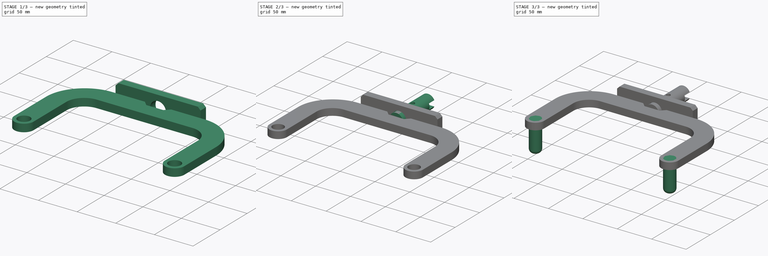
[diagram: build sequence overview — one tinted view per stage of 3, left to right]
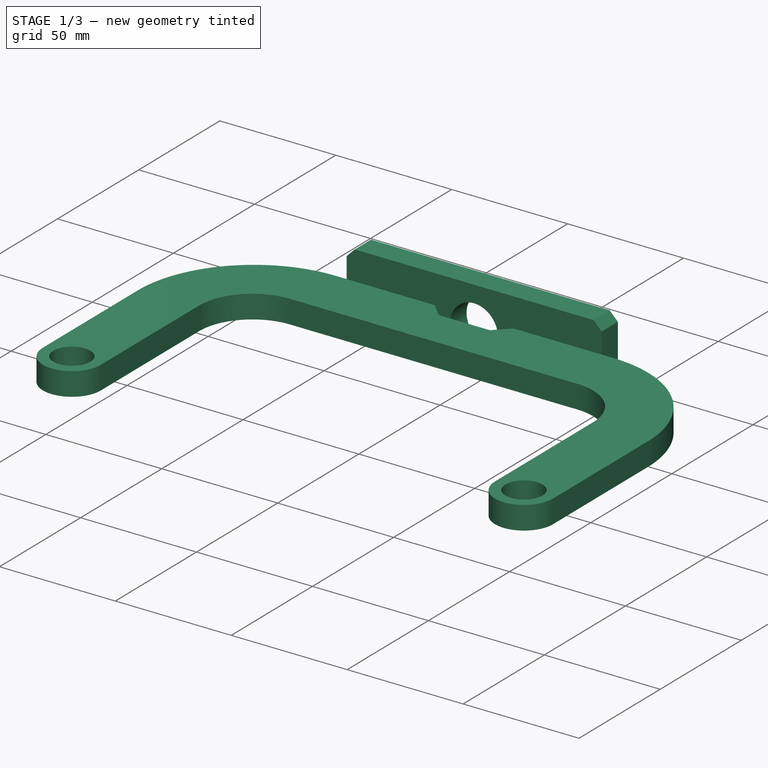
[diagram: stage 1 of 3 — iso view after this stage's code; geometry added in this stage tinted green]
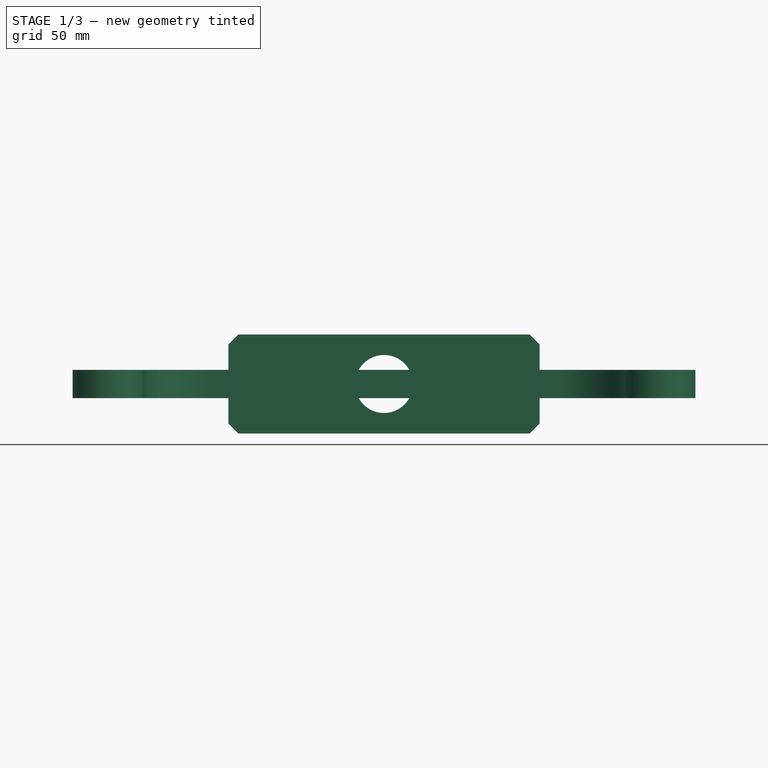
[diagram: stage 1 of 3 — front view after this stage's code; geometry added in this stage tinted green]
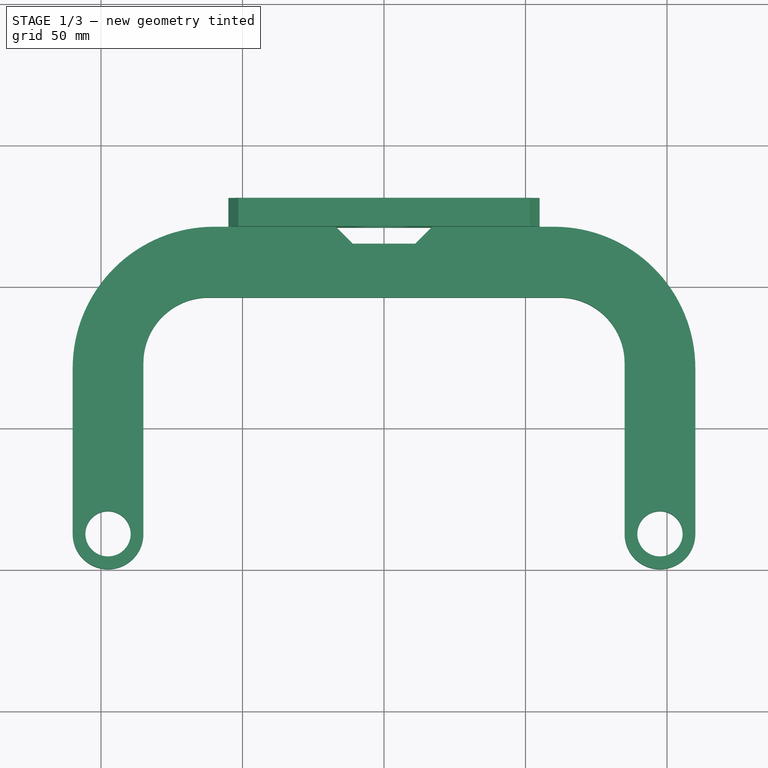
[diagram: stage 1 of 3 — top view after this stage's code; geometry added in this stage tinted green]
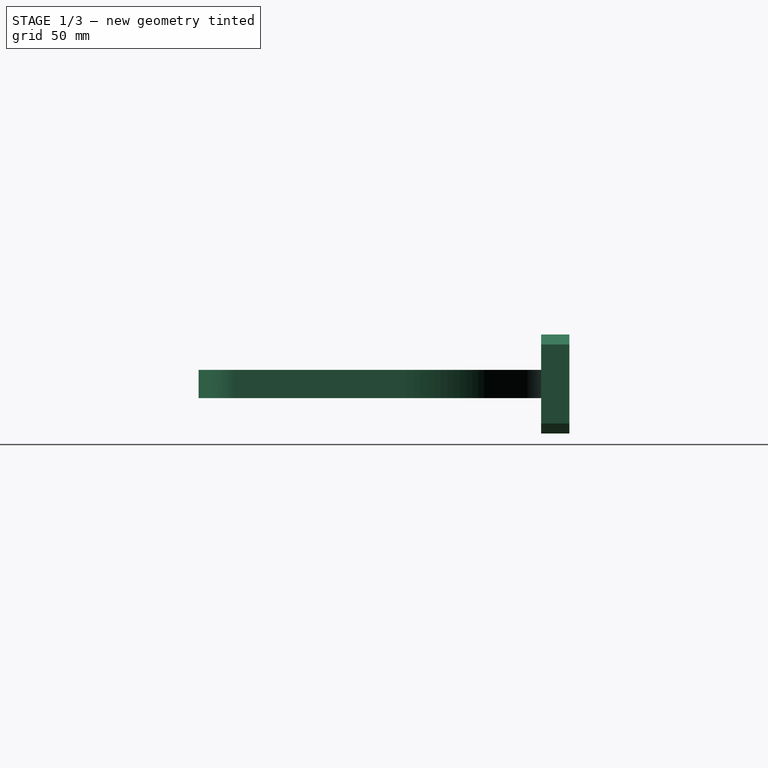
[diagram: stage 1 of 3 — right view after this stage's code; geometry added in this stage tinted green]
FCSTD DOCUMENT  (FreeCAD 0.17R10990 (Git))
Label: Clutch B
License: All rights reserved
LicenseURL: http://en.wikipedia.org/wiki/All_rights_reserved
objects: Sketcher::SketchObject×6, PartDesign::Pad×4, PartDesign::Pocket×2, PartDesign::Fillet×1, PartDesign::Body×1
note: 20 computed .brp shape members not serialized (recipe doc carries the construction recipe); baked Part::Feature solids carry a one-line shape summary decoded from their .brp

FEATURE [Sketcher::SketchObject] Sketch
  MapMode = 5
  Support = -> [XY_Plane]
  sketch-geometry (18):
    g0: ArcOfCircle CenterX=-97.5 CenterY=12.5 CenterZ=0 NormalX=0 NormalY=0 NormalZ=1 Radius=12.5 StartAngle=3.14159 EndAngle=6.28319
    g1: ArcOfCircle CenterX=97.5 CenterY=12.5 CenterZ=0 NormalX=0 NormalY=0 NormalZ=1 Radius=12.5 StartAngle=3.14159 EndAngle=6.28319
    g2: LineSegment StartX=-110 StartY=12.5 StartZ=0 EndX=-110 EndY=71 EndZ=0
    g3: LineSegment StartX=-60 StartY=121 StartZ=0 EndX=-17 EndY=121 EndZ=0
    g4: LineSegment StartX=110 StartY=71 StartZ=0 EndX=110 EndY=12.5 EndZ=0
    g5: LineSegment StartX=-85 StartY=12.5 StartZ=0 EndX=-85 EndY=73 EndZ=0
    g6: LineSegment StartX=-62 StartY=96 StartZ=0 EndX=62 EndY=96 EndZ=0
    g7: LineSegment StartX=85 StartY=73 StartZ=0 EndX=85 EndY=12.5 EndZ=0
    g8: ArcOfCircle CenterX=-62 CenterY=73 CenterZ=0 NormalX=0 NormalY=0 NormalZ=1 Radius=23 StartAngle=1.5708 EndAngle=3.14159
    g9: ArcOfCircle CenterX=62 CenterY=73 CenterZ=0 NormalX=0 NormalY=0 NormalZ=1 Radius=23 StartAngle=0 EndAngle=1.5708
    g10: ArcOfCircle CenterX=60 CenterY=71 CenterZ=0 NormalX=0 NormalY=0 NormalZ=1 Radius=50 StartAngle=0 EndAngle=1.5708
    g11: ArcOfCircle CenterX=-60 CenterY=71 CenterZ=0 NormalX=0 NormalY=0 NormalZ=1 Radius=50 StartAngle=1.5708 EndAngle=3.14159
    g12: LineSegment StartX=17 StartY=121 StartZ=0 EndX=11 EndY=115 EndZ=0
    g13: LineSegment StartX=11 StartY=115 StartZ=0 EndX=-11 EndY=115 EndZ=0
    g14: LineSegment StartX=-11 StartY=115 StartZ=0 EndX=-17 EndY=121 EndZ=0
    g15: LineSegment StartX=17 StartY=121 StartZ=0 EndX=60 EndY=121 EndZ=0
    g16: Circle CenterX=-97.5 CenterY=12.5 CenterZ=0 NormalX=0 NormalY=0 NormalZ=1 Radius=8
    g17: Circle CenterX=97.5 CenterY=12.5 CenterZ=0 NormalX=0 NormalY=0 NormalZ=1 Radius=8
  constraints (49):
    c: Vertical(g2)
    c: Horizontal(g3)
    c: Vertical(g4)
    c: Vertical(g5)
    c: Horizontal(g6)
    c: Vertical(g7)
    c: Coincident(g1,g4)
    c: Coincident(g7,g1)
    c: Coincident(g0,g5)
    c: Coincident(g0,g2)
    c: Equal(g0,g1)
    c: Tangent(g-1,g1)
    c: Tangent(g0,g-1)
    c: Tangent(g6,g8) = 1.5708
    c: Tangent(g5,g8) = 1.5708
    c: Tangent(g7,g9) = 1.5708
    c: Tangent(g6,g9) = 1.5708
    c: Tangent(g15,g10) = 1.5708
    c: Tangent(g4,g10) = 1.5708
    c: Tangent(g2,g11) = 1.5708
    c: Tangent(g3,g11) = 1.5708
    c: Equal(g10,g11)
    c: Equal(g9,g8)
    c: Radius(g1) = 12.5
    c: Radius(g10) = 50
    c: Radius(g9) = 23
    c: Tangent(g1,g7)
    c: Tangent(g1,g4)
    c: Tangent(g0,g5)
    c: Tangent(g0,g2)
    c: DistanceX(g0,g1) = 170
    c: DistanceY(g-1,g6) = 96
    c: DistanceY(g-1,g3) = 121
    c: Symmetric(g2,g4,g-2)
    c: Coincident(g12,g13)
    c: Horizontal(g13)
    c: Coincident(g13,g14)
    c: Symmetric(g13,g12,g-2)
    c: Equal(g14,g12)
    c: Coincident(g3,g14)
    c: Coincident(g15,g12)
    c: Tangent(g3,g15)
    c: DistanceX(g3,g12) = 34
    c: DistanceX(g13,g13) = 22
    c: DistanceY(g12,g12) = 6
    c: Coincident(g17,g1)
    c: Equal(g16,g17)
    c: Radius(g17) = 8
    c: Coincident(g16,g0)
FEATURE [PartDesign::Pad] Pad
  Length = 10
  Length2 = 100
  Midplane = true
  Profile = -> Sketch
  Type = 0
FEATURE [Sketcher::SketchObject] Sketch001
  MapMode = 5
  Placement = pos=(2.9e-11,121,0) rot=(0,0.707107,0.707107;3.14159rad)
  Support = -> [Pad]
  sketch-geometry (9):
    g0: LineSegment StartX=-51.4645 StartY=17.5 StartZ=0 EndX=51.4645 EndY=17.5 EndZ=0
    g1: LineSegment StartX=51.4645 StartY=17.5 StartZ=0 EndX=55 EndY=13.9645 EndZ=0
    g2: LineSegment StartX=55 StartY=13.9645 StartZ=0 EndX=55 EndY=-13.9645 EndZ=0
    g3: LineSegment StartX=55 StartY=-13.9645 StartZ=0 EndX=51.4645 EndY=-17.5 EndZ=0
    g4: LineSegment StartX=51.4645 StartY=-17.5 StartZ=0 EndX=-51.4645 EndY=-17.5 EndZ=0
    g5: LineSegment StartX=-51.4645 StartY=-17.5 StartZ=0 EndX=-55 EndY=-13.9645 EndZ=0
    g6: LineSegment StartX=-55 StartY=-13.9645 StartZ=0 EndX=-55 EndY=13.9645 EndZ=0
    g7: LineSegment StartX=-55 StartY=13.9645 StartZ=0 EndX=-51.4645 EndY=17.5 EndZ=0
    g8: Circle CenterX=0 CenterY=0 CenterZ=0 NormalX=0 NormalY=0 NormalZ=1 Radius=10.25
  constraints (26):
    c: Horizontal(g0)
    c: Coincident(g0,g1)
    c: Coincident(g1,g2)
    c: Vertical(g2)
    c: Coincident(g2,g3)
    c: Coincident(g3,g4)
    c: Horizontal(g4)
    c: Coincident(g4,g5)
    c: Coincident(g5,g6)
    c: Vertical(g6)
    c: Coincident(g6,g7)
    c: Coincident(g7,g0)
    c: Equal(g7,g5)
    c: Equal(g5,g3)
    c: Equal(g3,g1)
    c: Parallel(g7,g3)
    c: Parallel(g5,g1)
    c: Angle(g-1,g7) = 0.785398
    c: Angle(g1,g-1) = 0.785398
    c: Symmetric(g3,g0,g-1)
    c: Symmetric(g2,g5,g-2)
    c: Coincident(g8,g-1)
    c: Radius(g8) = 10.25
    c: Distance(g5) = 5
    c: DistanceX(g6,g1) = 110
    c: DistanceY(g3,g0) = 35
FEATURE [PartDesign::Pad] Pad001
  BaseFeature = -> Pad
  Length = 10
  Length2 = 100
  Profile = -> Sketch001
  Type = 0
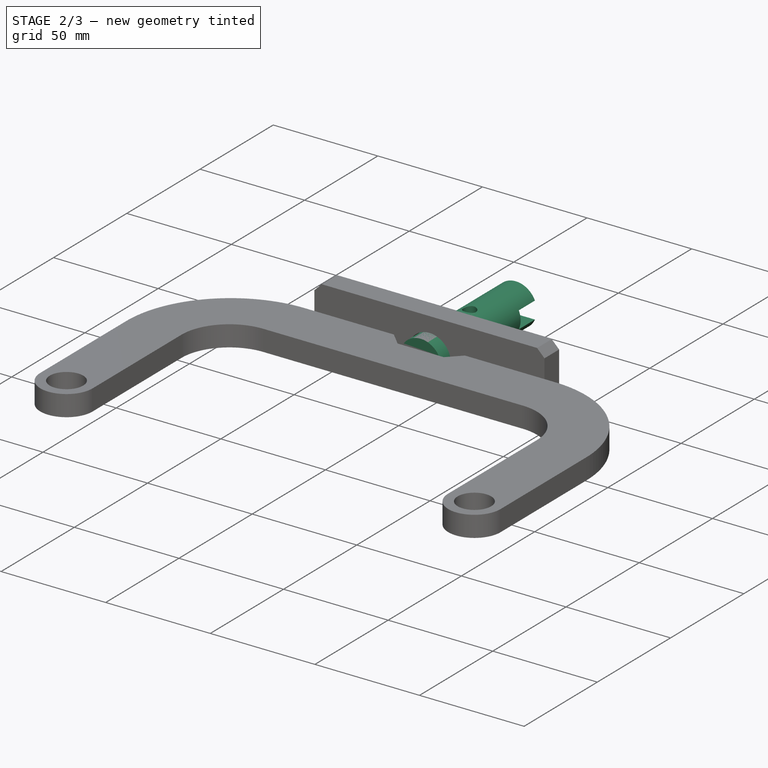
[diagram: stage 2 of 3 — iso view after this stage's code; geometry added in this stage tinted green]
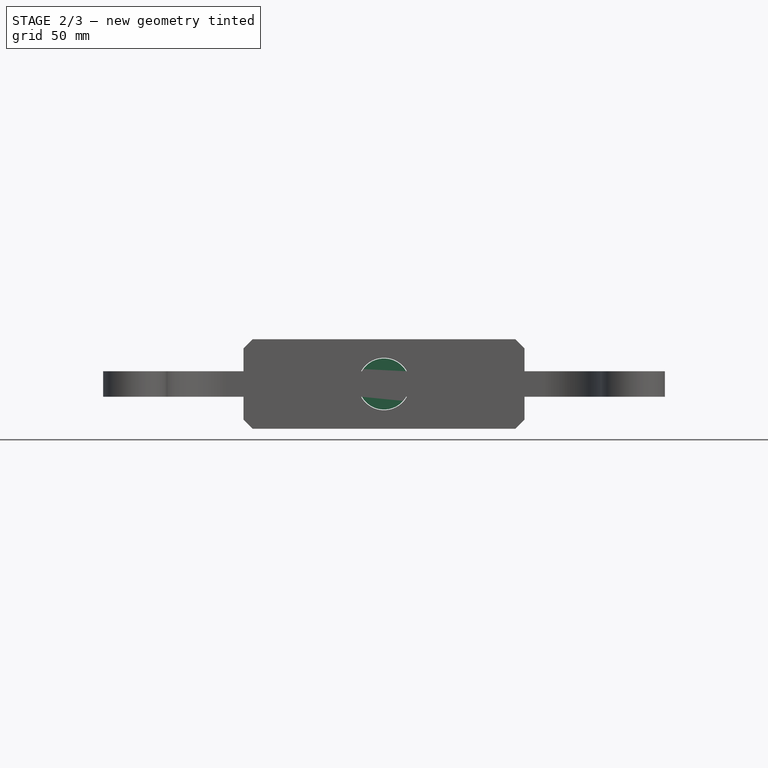
[diagram: stage 2 of 3 — front view after this stage's code; geometry added in this stage tinted green]
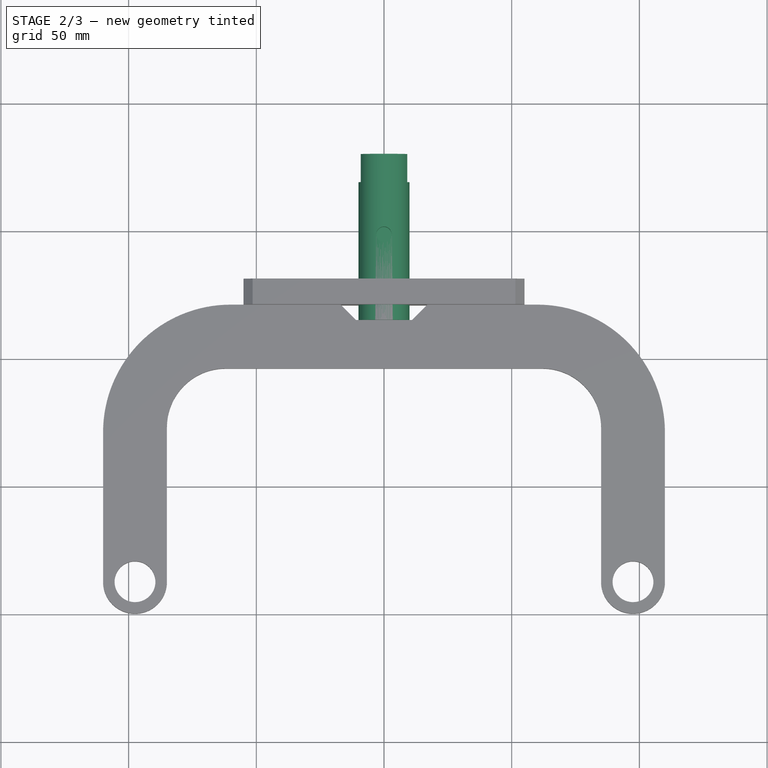
[diagram: stage 2 of 3 — top view after this stage's code; geometry added in this stage tinted green]
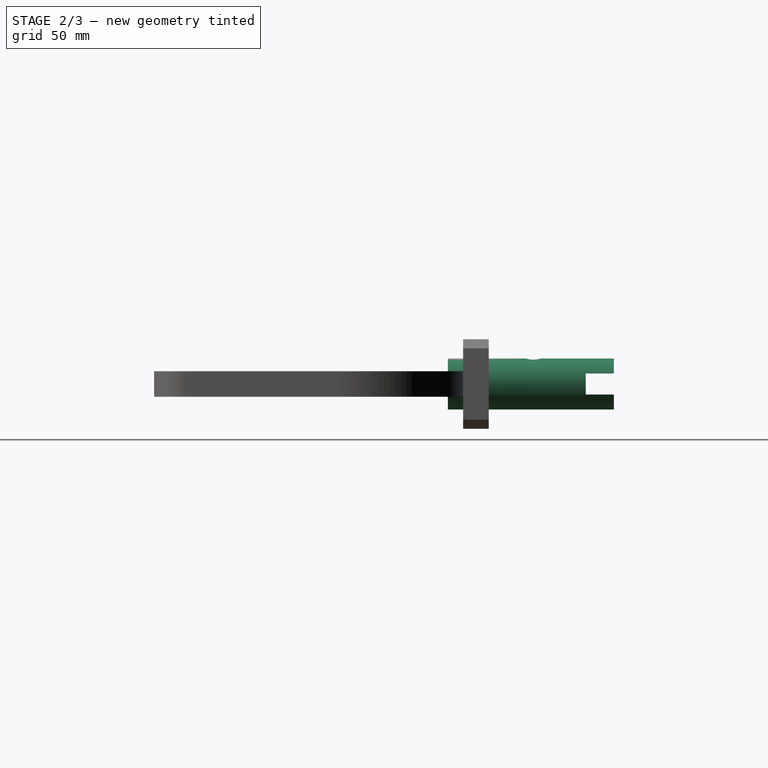
[diagram: stage 2 of 3 — right view after this stage's code; geometry added in this stage tinted green]
FEATURE [Sketcher::SketchObject] Sketch002
  MapMode = 5
  Placement = pos=(0,115,0) rot=(0,0.707107,0.707107;3.14159rad)
  Support = -> [Pad001]
  sketch-geometry (1):
    g0: Circle CenterX=0 CenterY=0 CenterZ=0 NormalX=0 NormalY=0 NormalZ=1 Radius=10
  constraints (2):
    c: Coincident(g0,g-1)
    c: Radius(g0) = 10
FEATURE [PartDesign::Pad] Pad002
  BaseFeature = -> Pad001
  Length = 65
  Length2 = 100
  Profile = -> Sketch002
  Type = 0
FEATURE [Sketcher::SketchObject] Sketch003
  ExternalGeometry = -> [Pad002]
  MapMode = 5
  Placement = pos=(0,180,0) rot=(0,0.707107,0.707107;3.14159rad)
  Support = -> [Pad002]
  sketch-geometry (4):
    g0: LineSegment StartX=-10 StartY=4.1 StartZ=0 EndX=10 EndY=4.1 EndZ=0
    g1: LineSegment StartX=10 StartY=4.1 StartZ=0 EndX=10 EndY=-4.1 EndZ=0
    g2: LineSegment StartX=10 StartY=-4.1 StartZ=0 EndX=-10 EndY=-4.1 EndZ=0
    g3: LineSegment StartX=-10 StartY=-4.1 StartZ=0 EndX=-10 EndY=4.1 EndZ=0
  constraints (12):
    c: Coincident(g0,g1)
    c: Coincident(g1,g2)
    c: Coincident(g2,g3)
    c: Coincident(g3,g0)
    c: Horizontal(g0)
    c: Horizontal(g2)
    c: Vertical(g1)
    c: Vertical(g3)
    c: Symmetric(g0,g0,g-2)
    c: Symmetric(g1,g0,g-1)
    c: DistanceY(g1,g1) = 8.2
    c: Tangent(g-3,g3)
FEATURE [PartDesign::Pocket] Pocket
  BaseFeature = -> Pad002
  Length = 11
  Profile = -> Sketch003
  Type = 0
FEATURE [Sketcher::SketchObject] Sketch004
  ExternalGeometry = -> [Pocket]
  MapMode = 5
  Support = -> [XY_Plane]
  sketch-geometry (1):
    g0: Circle CenterX=0 CenterY=148.5 CenterZ=0 NormalX=0 NormalY=0 NormalZ=1 Radius=3
  constraints (3):
    c: Radius(g0) = 3
    c: PointOnObject(g0,g-2)
    c: DistanceY(g-3,g0) = 33.5
FEATURE [PartDesign::Pocket] Pocket001
  BaseFeature = -> Pocket
  Length = 5
  Profile = -> Sketch004
  Reversed = true
  Type = 1
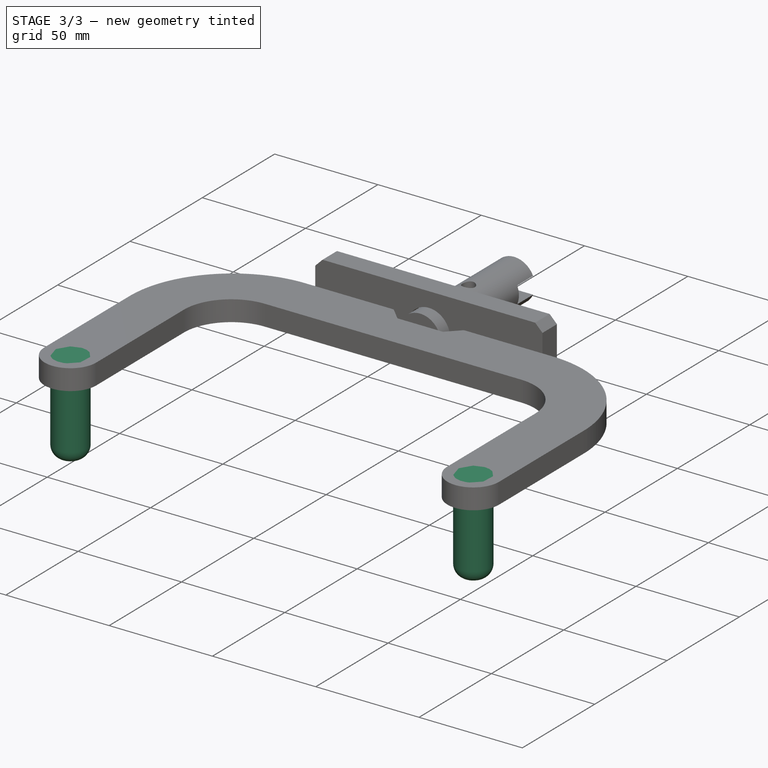
[diagram: stage 3 of 3 — iso view after this stage's code; geometry added in this stage tinted green]
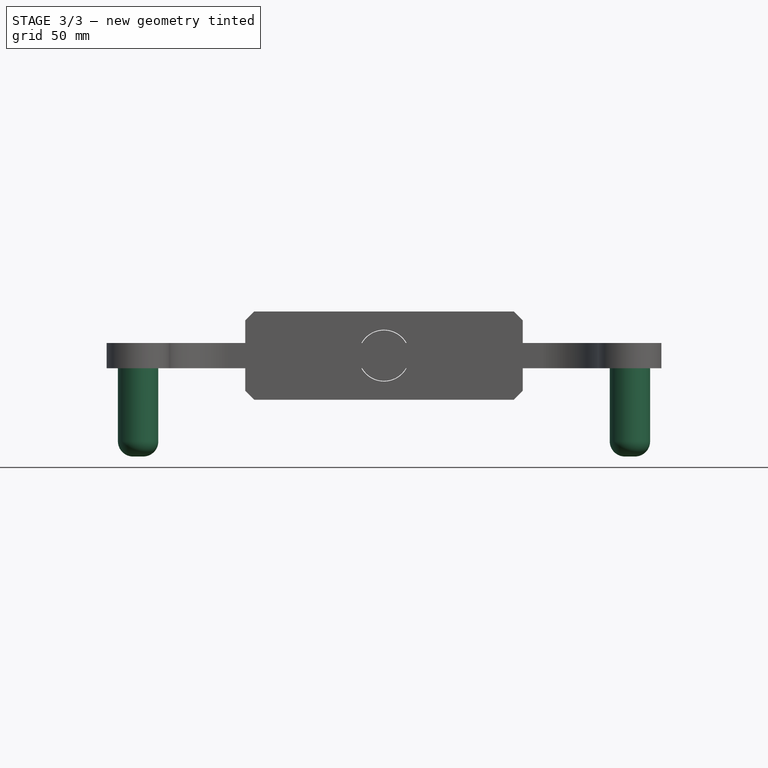
[diagram: stage 3 of 3 — front view after this stage's code; geometry added in this stage tinted green]
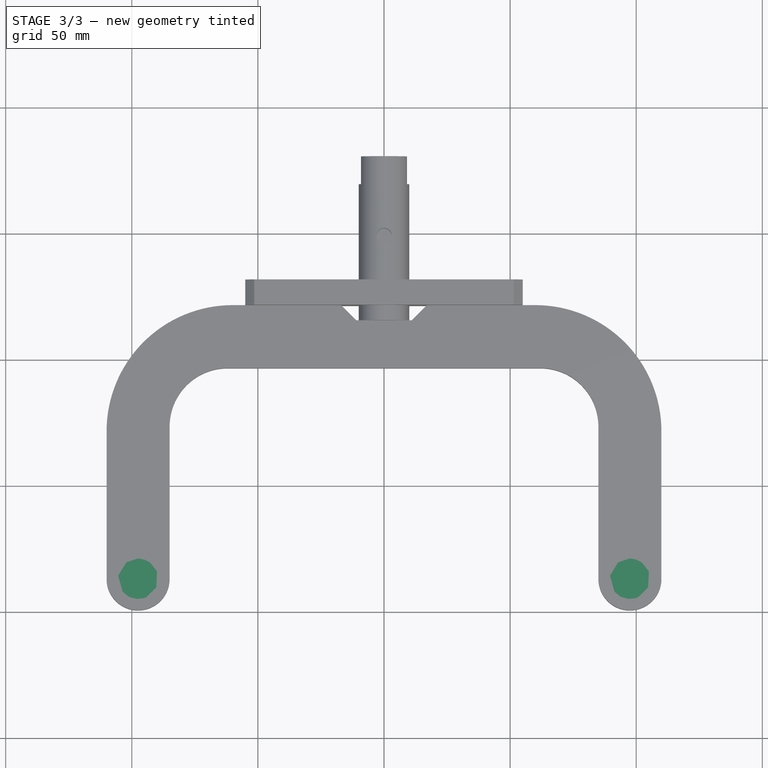
[diagram: stage 3 of 3 — top view after this stage's code; geometry added in this stage tinted green]
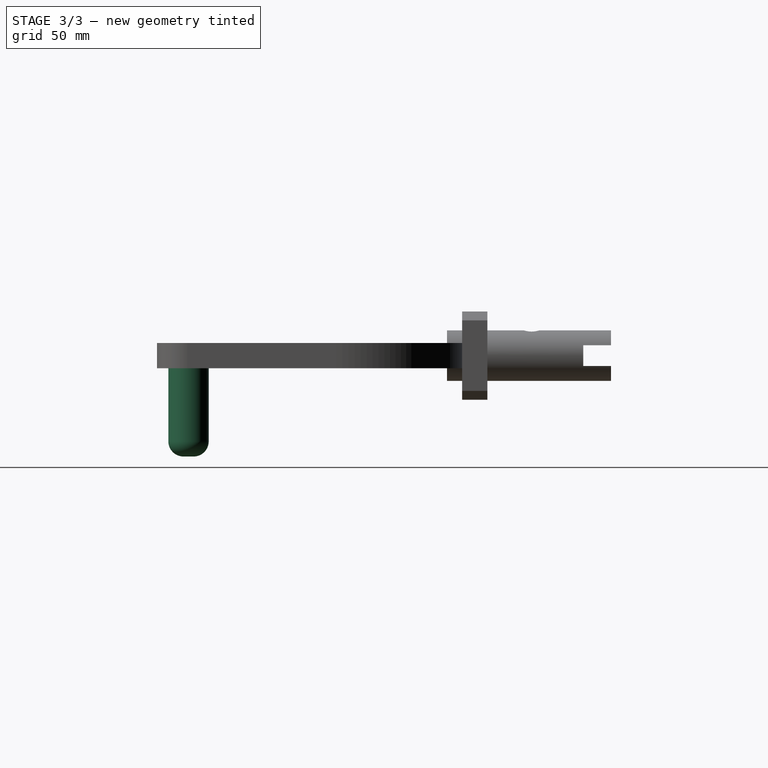
[diagram: stage 3 of 3 — right view after this stage's code; geometry added in this stage tinted green]
FEATURE [Sketcher::SketchObject] Sketch005
  ExternalGeometry = -> [Pocket001]
  MapMode = 5
  Placement = pos=(0,0,5) rot=(0,0,1;0rad)
  Support = -> [Pocket001]
  sketch-geometry (2):
    g0: Circle CenterX=-97.5 CenterY=12.5 CenterZ=0 NormalX=0 NormalY=0 NormalZ=1 Radius=8
    g1: Circle CenterX=97.5 CenterY=12.5 CenterZ=0 NormalX=0 NormalY=0 NormalZ=1 Radius=8
  constraints (2):
    c: Coincident(g0,g-3)
    c: Coincident(g1,g-4)
FEATURE [PartDesign::Pad] Pad003
  BaseFeature = -> Pocket001
  Length = 45
  Length2 = 100
  Profile = -> Sketch005
  Reversed = true
  Type = 0
FEATURE [PartDesign::Fillet] Fillet
  Base = -> Pad003 [Edge82,Edge84]
  BaseFeature = -> Pad003
  Radius = 6
FEATURE [PartDesign::Body] Body
  Group = -> [Sketch,Pad,Sketch001,Pad001,Sketch002,Pad002,Sketch003,Pocket,Sketch004,Pocket001,Sketch005,Pad003,Fillet]
  Origin = -> BodyOrigin
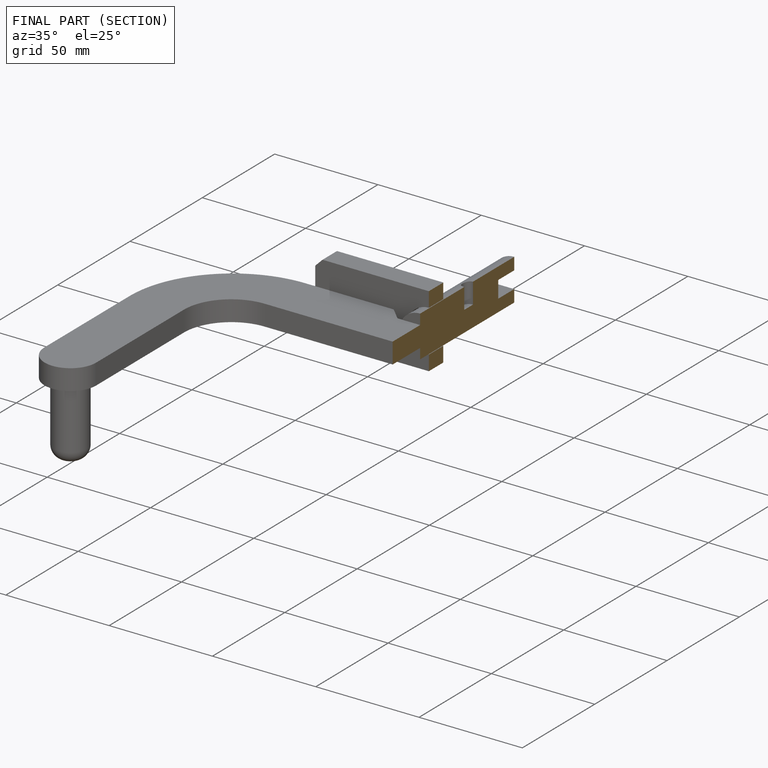
[diagram: finished part — half-section view (interior)]
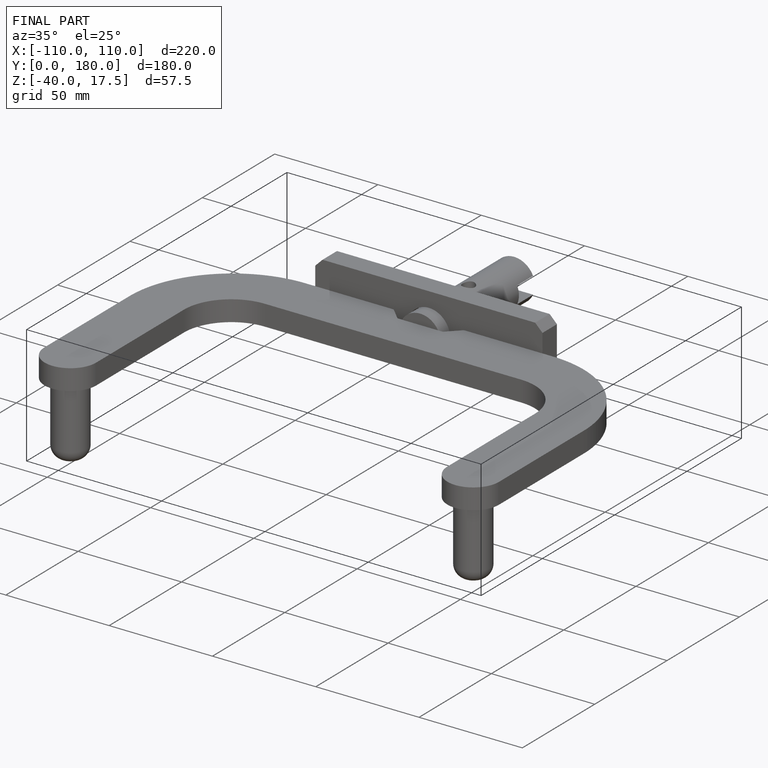
[diagram: finished part — iso view with bounding-box wireframe]
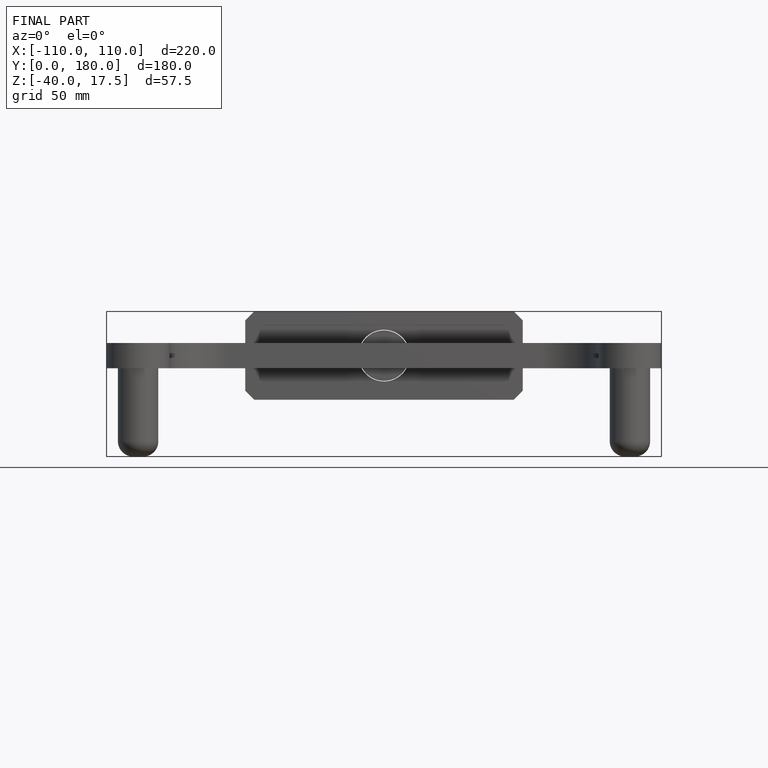
[diagram: finished part — front view with bounding-box wireframe]
